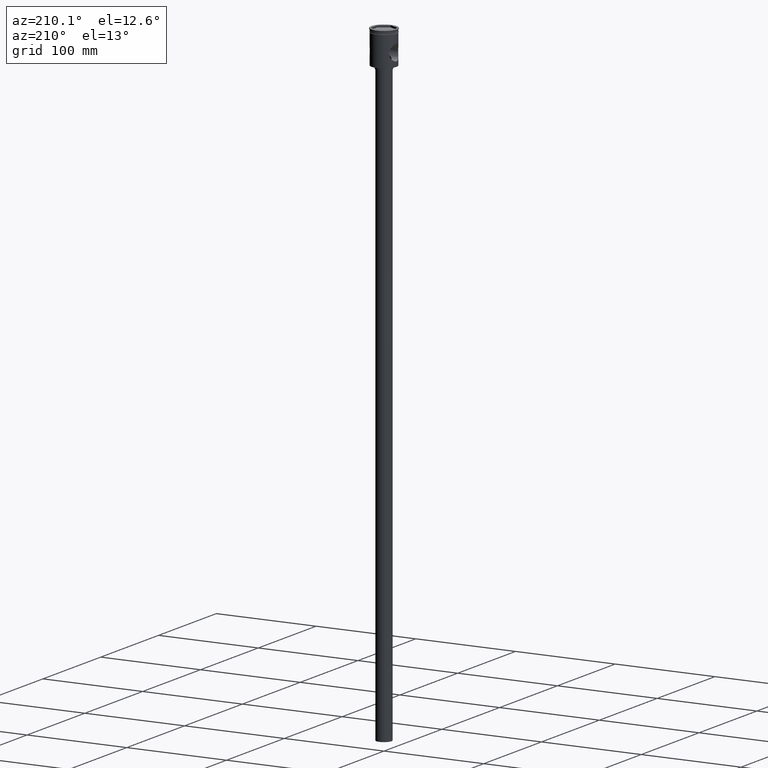
[diagram: clean part render]
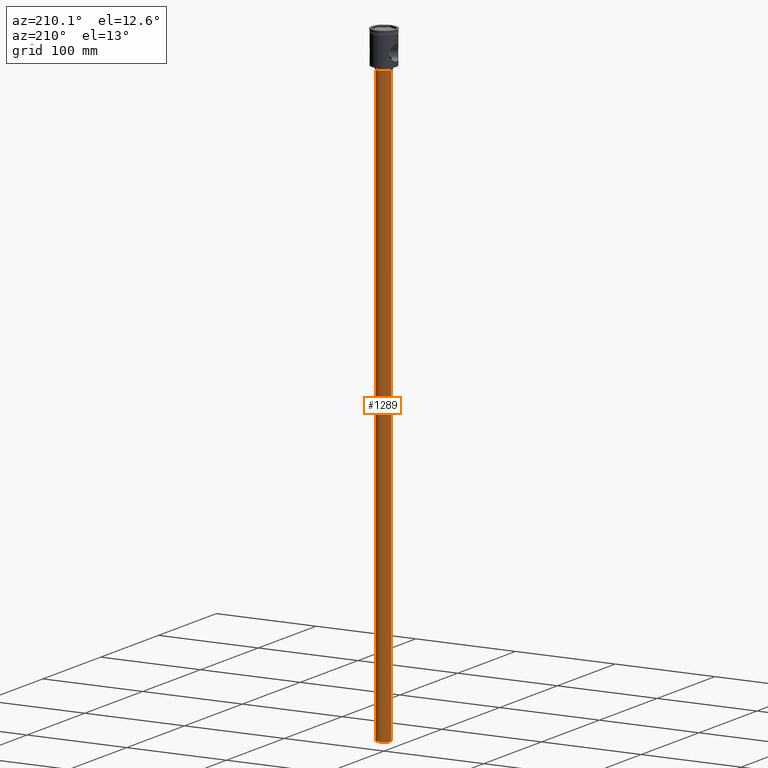
[diagram: same view with one face highlighted and labeled with its STEP entity id]
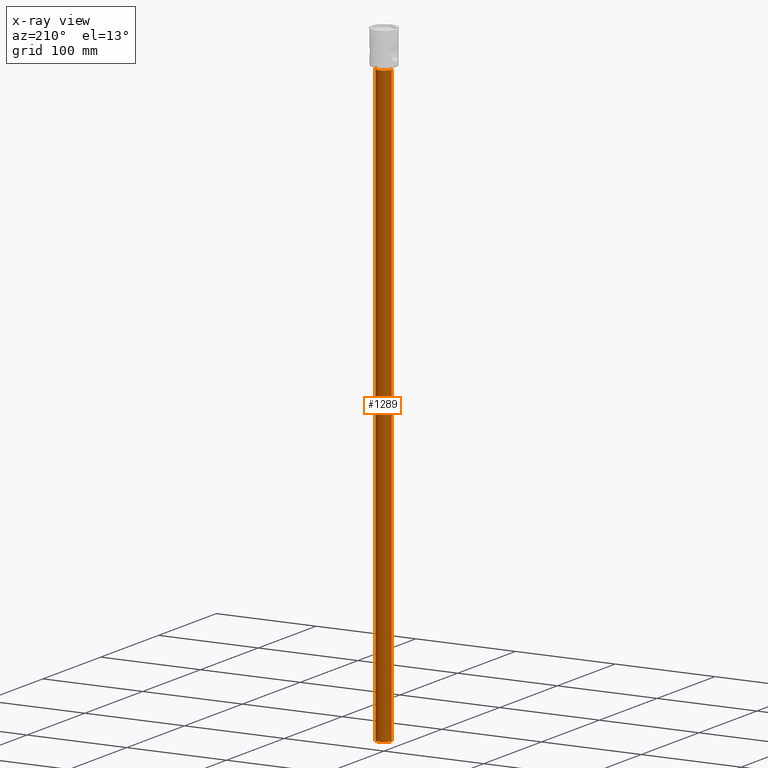
[diagram: x-ray of the same camera — body ghosted, the highlighted face saturated]
A machine part, auxiliary view. The second image highlights one B-rep face of the part: STEP entity #1289.
The next image is the same camera in x-ray: the body ghosted, the highlighted face saturated — about 0% of this face is hidden behind the body in this view.
In plain terms, the highlighted cylindrical surface (edge-blend (fillet) strip) has radius 7.5 mm, axis along (-0, -0, 1).
Its self-contained STEP definition (entity closure, byte-faithful):
#5 = CARTESIAN_POINT ( 'NONE',  ( 7.500000000000000000, 0.000000000000000000, -36.50000000000000711 ) ) ;
#31 = CYLINDRICAL_SURFACE ( 'NONE', #1472, 7.500000000000000000 ) ;
#100 = ORIENTED_EDGE ( 'NONE', *, *, #847, .T. ) ;
#135 = CARTESIAN_POINT ( 'NONE',  ( -7.500000000000000000, 9.184850993605147944E-16, -633.5000000000000000 ) ) ;
#149 = FACE_OUTER_BOUND ( 'NONE', #845, .T. ) ;
#236 = AXIS2_PLACEMENT_3D ( 'NONE', #838, #689, #812 ) ;
#312 = CIRCLE ( 'NONE', #1231, 7.500000000000000000 ) ;
#325 = EDGE_CURVE ( 'NONE', #722, #711, #312, .T. ) ;
#332 = VECTOR ( 'NONE', #1009, 1000.000000000000000 ) ;
#523 = CARTESIAN_POINT ( 'NONE',  ( 7.500000000000000000, 0.000000000000000000, -633.5000000000000000 ) ) ;
#550 = VERTEX_POINT ( 'NONE', #1159 ) ;
#558 = ORIENTED_EDGE ( 'NONE', *, *, #325, .T. ) ;
#689 = DIRECTION ( 'NONE',  ( 0.000000000000000000, 0.000000000000000000, -1.000000000000000000 ) ) ;
#709 = VERTEX_POINT ( 'NONE', #135 ) ;
#711 = VERTEX_POINT ( 'NONE', #5 ) ;
#712 = EDGE_CURVE ( 'NONE', #709, #550, #1259, .T. ) ;
#722 = VERTEX_POINT ( 'NONE', #1287 ) ;
#734 = VECTOR ( 'NONE', #1157, 1000.000000000000000 ) ;
#749 = DIRECTION ( 'NONE',  ( -1.000000000000000000, 0.000000000000000000, 0.000000000000000000 ) ) ;
#812 = DIRECTION ( 'NONE',  ( -1.000000000000000000, 0.000000000000000000, 0.000000000000000000 ) ) ;
#838 = CARTESIAN_POINT ( 'NONE',  ( 0.000000000000000000, 0.000000000000000000, -633.5000000000000000 ) ) ;
#845 = EDGE_LOOP ( 'NONE', ( #957, #100, #558, #1264 ) ) ;
#847 = EDGE_CURVE ( 'NONE', #709, #722, #1161, .T. ) ;
#864 = DIRECTION ( 'NONE',  ( -0.000000000000000000, -0.000000000000000000, 1.000000000000000000 ) ) ;
#875 = LINE ( 'NONE', #523, #332 ) ;
#934 = CARTESIAN_POINT ( 'NONE',  ( -7.500000000000000000, 9.184850993605147944E-16, -633.5000000000000000 ) ) ;
#957 = ORIENTED_EDGE ( 'NONE', *, *, #712, .F. ) ;
#979 = CARTESIAN_POINT ( 'NONE',  ( 0.000000000000000000, 0.000000000000000000, -633.5000000000000000 ) ) ;
#980 = EDGE_CURVE ( 'NONE', #550, #711, #875, .T. ) ;
#1009 = DIRECTION ( 'NONE',  ( -0.000000000000000000, -0.000000000000000000, 1.000000000000000000 ) ) ;
#1105 = CARTESIAN_POINT ( 'NONE',  ( 0.000000000000000000, 0.000000000000000000, -36.50000000000000711 ) ) ;
#1157 = DIRECTION ( 'NONE',  ( -0.000000000000000000, -0.000000000000000000, 1.000000000000000000 ) ) ;
#1159 = CARTESIAN_POINT ( 'NONE',  ( 7.500000000000000000, 0.000000000000000000, -633.5000000000000000 ) ) ;
#1161 = LINE ( 'NONE', #934, #734 ) ;
#1231 = AXIS2_PLACEMENT_3D ( 'NONE', #1105, #1330, #749 ) ;
#1259 = CIRCLE ( 'NONE', #236, 7.500000000000000000 ) ;
#1264 = ORIENTED_EDGE ( 'NONE', *, *, #980, .F. ) ;
#1287 = CARTESIAN_POINT ( 'NONE',  ( -7.500000000000000000, 9.184850993605147944E-16, -36.50000000000000711 ) ) ;
#1289 = ADVANCED_FACE ( 'NONE', ( #149 ), #31, .T. ) ;
#1330 = DIRECTION ( 'NONE',  ( 0.000000000000000000, 0.000000000000000000, -1.000000000000000000 ) ) ;
#1472 = AXIS2_PLACEMENT_3D ( 'NONE', #979, #864, #1474 ) ;
#1474 = DIRECTION ( 'NONE',  ( 1.000000000000000000, 0.000000000000000000, 0.000000000000000000 ) ) ;